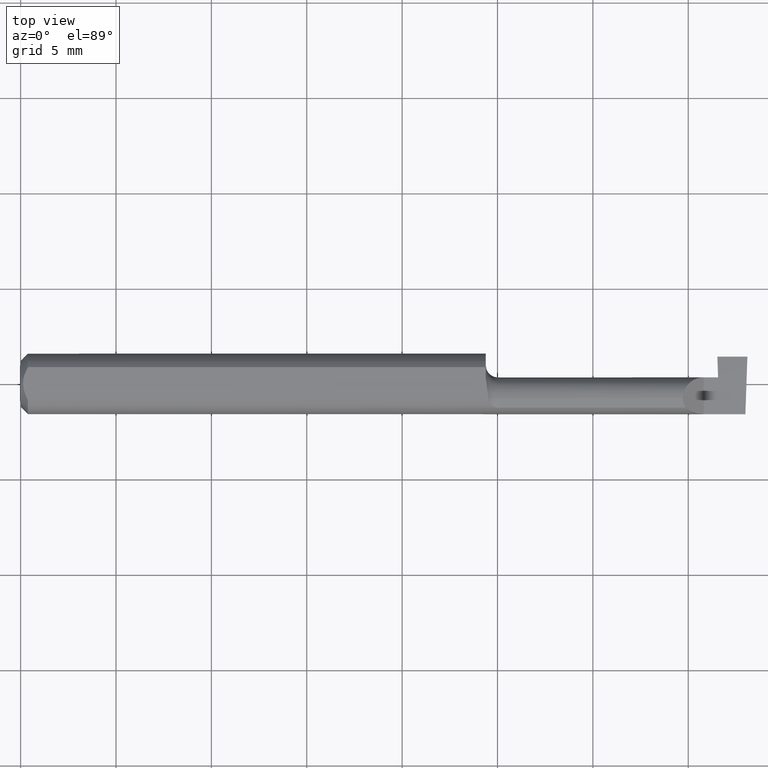
[diagram: clean part render]
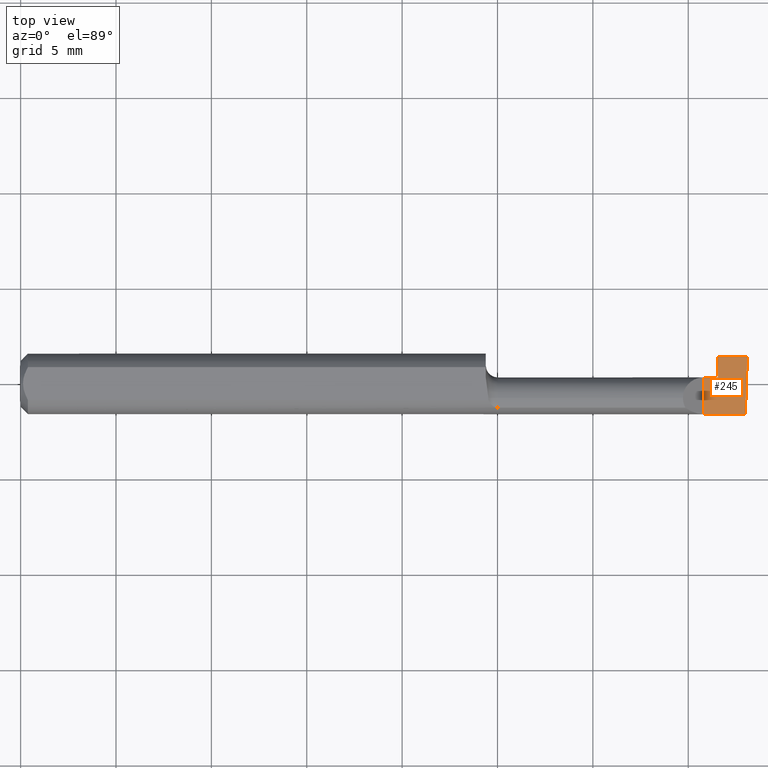
[diagram: same view with one face highlighted and labeled with its STEP entity id]
A machine part, top view. The second image highlights one B-rep face of the part: STEP entity #245.
In plain terms, the highlighted planar face has unit normal (-0, 0, -1).
Its self-contained STEP definition (entity closure, byte-faithful):
#7 = VECTOR ( 'NONE', #10, 39.37007874015748143 ) ;
#10 = DIRECTION ( 'NONE',  ( -0.000000000000000000, 1.000000000000000000, -0.000000000000000000 ) ) ;
#13 = ORIENTED_EDGE ( 'NONE', *, *, #402, .F. ) ;
#27 = LINE ( 'NONE', #97, #556 ) ;
#40 = VERTEX_POINT ( 'NONE', #263 ) ;
#50 = LINE ( 'NONE', #146, #268 ) ;
#57 = CARTESIAN_POINT ( 'NONE',  ( 1.409999999999999920, -0.1000000000000000056, 1.102182119232617911E-17 ) ) ;
#78 = VERTEX_POINT ( 'NONE', #592 ) ;
#91 = LINE ( 'NONE', #550, #338 ) ;
#97 = CARTESIAN_POINT ( 'NONE',  ( 0.9600000000000001865, 0.01349999999999999811, 6.613092715395697606E-17 ) ) ;
#99 = ORIENTED_EDGE ( 'NONE', *, *, #536, .F. ) ;
#106 = CARTESIAN_POINT ( 'NONE',  ( 1.438000000000000167, 0.05650000000000000161, -7.164183775012044310E-19 ) ) ;
#120 = EDGE_CURVE ( 'NONE', #705, #413, #91, .T. ) ;
#130 = ORIENTED_EDGE ( 'NONE', *, *, #300, .T. ) ;
#144 = EDGE_CURVE ( 'NONE', #617, #571, #704, .T. ) ;
#146 = CARTESIAN_POINT ( 'NONE',  ( 2.249639673992780117E-32, -0.06250000000000000000, 1.836970198721027469E-16 ) ) ;
#151 = CARTESIAN_POINT ( 'NONE',  ( 1.494541555929521870, -0.09980938693283122887, 6.684666059235883717E-19 ) ) ;
#182 = ORIENTED_EDGE ( 'NONE', *, *, #120, .F. ) ;
#223 = DIRECTION ( 'NONE',  ( -1.224646799147351482E-16, 0.000000000000000000, -1.000000000000000000 ) ) ;
#239 = LINE ( 'NONE', #282, #672 ) ;
#245 = ADVANCED_FACE ( 'NONE', ( #662 ), #497, .F. ) ;
#248 = ORIENTED_EDGE ( 'NONE', *, *, #144, .F. ) ;
#263 = CARTESIAN_POINT ( 'NONE',  ( 1.495844428430481710, -0.06249999999999996531, -4.014002452596986816E-18 ) ) ;
#268 = VECTOR ( 'NONE', #423, 39.37007874015748143 ) ;
#282 = CARTESIAN_POINT ( 'NONE',  ( 1.443530545453516556, -0.1019707540796309653, 6.915513675994789630E-18 ) ) ;
#299 = EDGE_LOOP ( 'NONE', ( #99, #603, #182, #130, #13, #248 ) ) ;
#300 = EDGE_CURVE ( 'NONE', #705, #78, #239, .T. ) ;
#311 = CARTESIAN_POINT ( 'NONE',  ( 1.409999999999999920, -0.06250000000000000000, 1.102182119232617911E-17 ) ) ;
#338 = VECTOR ( 'NONE', #700, 39.37007874015748143 ) ;
#381 = DIRECTION ( 'NONE',  ( 1.000000000000000000, 0.000000000000000000, 0.000000000000000000 ) ) ;
#394 = DIRECTION ( 'NONE',  ( -1.000000000000000000, 0.000000000000000000, 1.224646799147351482E-16 ) ) ;
#402 = EDGE_CURVE ( 'NONE', #571, #78, #27, .T. ) ;
#411 = EDGE_CURVE ( 'NONE', #40, #413, #533, .T. ) ;
#413 = VERTEX_POINT ( 'NONE', #422 ) ;
#422 = CARTESIAN_POINT ( 'NONE',  ( 1.499999999999999778, 0.05649999999999998079, -1.277885926723810555E-16 ) ) ;
#423 = DIRECTION ( 'NONE',  ( -1.000000000000000000, -0.000000000000000000, -0.000000000000000000 ) ) ;
#454 = DIRECTION ( 'NONE',  ( 0.03487823687994841271, -0.9993915692020550745, -4.266149715957576566E-18 ) ) ;
#459 = VECTOR ( 'NONE', #706, 39.37007874015748854 ) ;
#497 = PLANE ( 'NONE',  #532 ) ;
#532 = AXIS2_PLACEMENT_3D ( 'NONE', #562, #223, #394 ) ;
#533 = LINE ( 'NONE', #151, #459 ) ;
#536 = EDGE_CURVE ( 'NONE', #40, #617, #50, .T. ) ;
#550 = CARTESIAN_POINT ( 'NONE',  ( 1.400000000000000133, 0.05650000000000000161, -7.164183775012044310E-19 ) ) ;
#556 = VECTOR ( 'NONE', #381, 39.37007874015748143 ) ;
#562 = CARTESIAN_POINT ( 'NONE',  ( 1.500000000000000222, -0.1000000000000000056, 0.000000000000000000 ) ) ;
#571 = VERTEX_POINT ( 'NONE', #647 ) ;
#592 = CARTESIAN_POINT ( 'NONE',  ( 1.439500677244090587, 0.01349999999999997383, 1.224154007838118068E-17 ) ) ;
#603 = ORIENTED_EDGE ( 'NONE', *, *, #411, .T. ) ;
#617 = VERTEX_POINT ( 'NONE', #311 ) ;
#647 = CARTESIAN_POINT ( 'NONE',  ( 1.409999999999999920, 0.01349999999999997209, 1.102182119232617911E-17 ) ) ;
#662 = FACE_OUTER_BOUND ( 'NONE', #299, .T. ) ;
#672 = VECTOR ( 'NONE', #454, 39.37007874015748854 ) ;
#700 = DIRECTION ( 'NONE',  ( 1.000000000000000000, -0.000000000000000000, -0.000000000000000000 ) ) ;
#704 = LINE ( 'NONE', #57, #7 ) ;
#705 = VERTEX_POINT ( 'NONE', #106 ) ;
#706 = DIRECTION ( 'NONE',  ( 0.03489949670250192676, 0.9993908270190955401, -4.271027038988480103E-18 ) ) ;